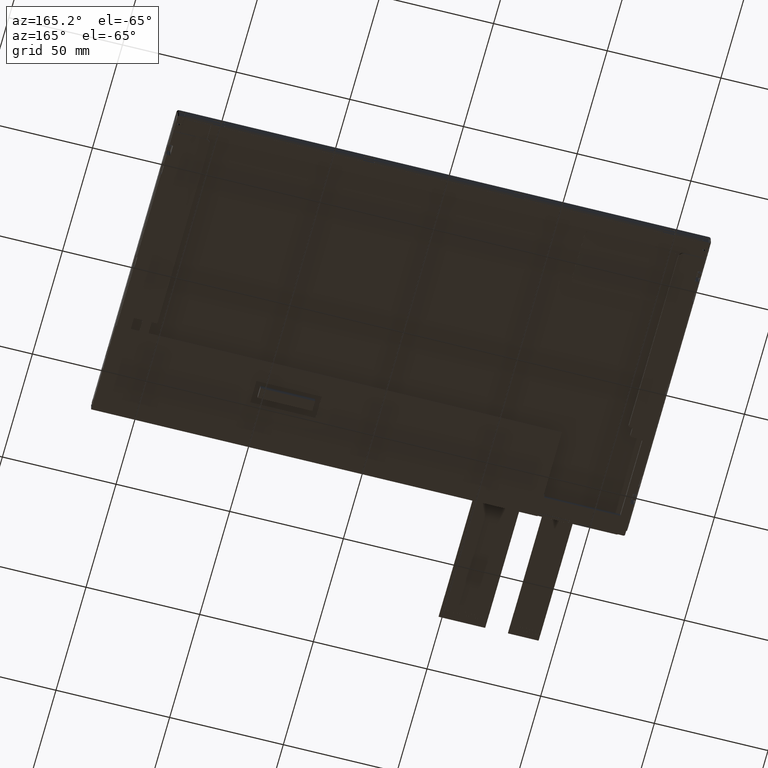
[diagram: clean part render]
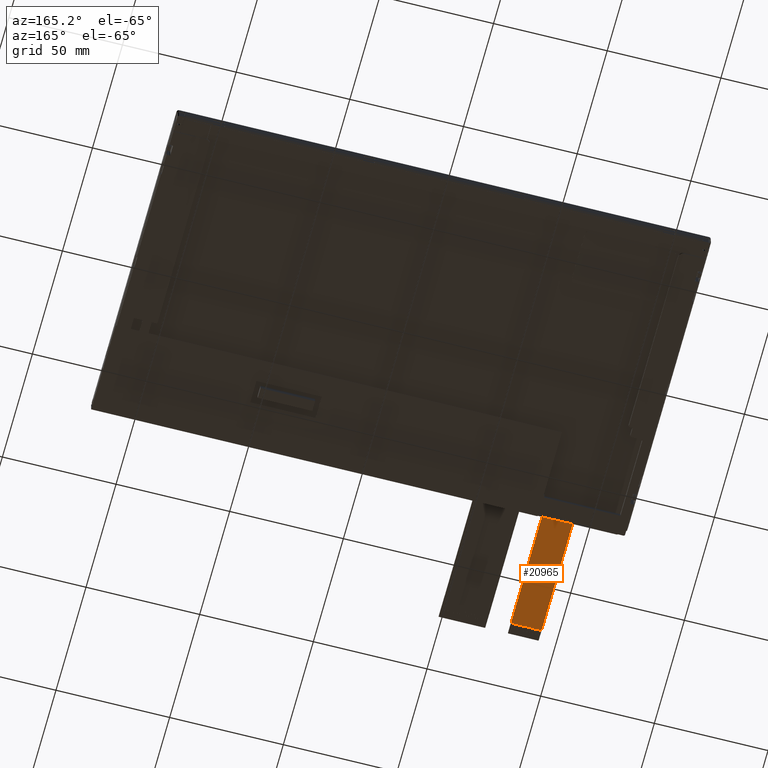
[diagram: same view with one face highlighted and labeled with its STEP entity id]
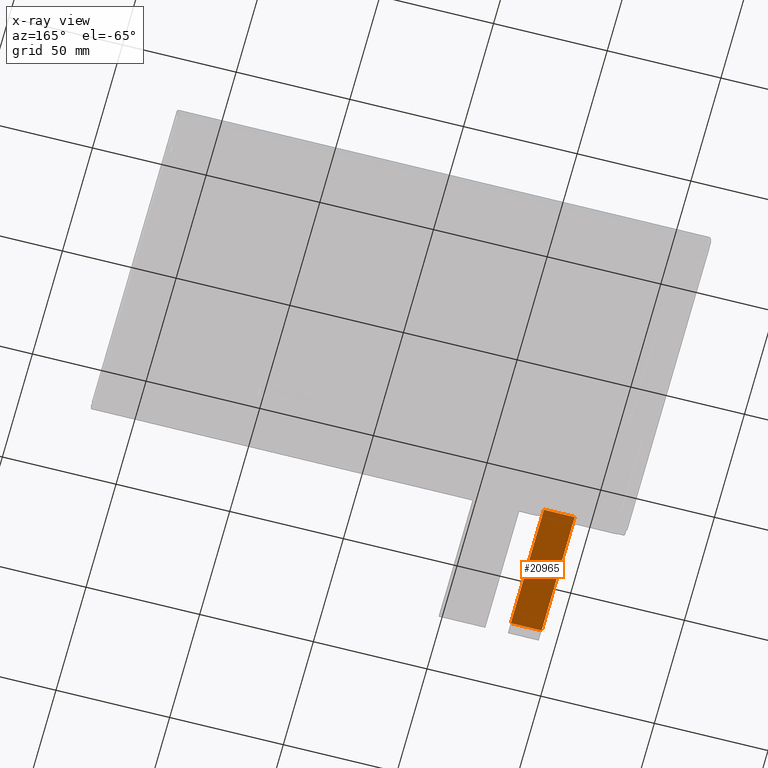
[diagram: x-ray of the same camera — body ghosted, the highlighted face saturated]
A machine part, auxiliary view. The second image highlights one B-rep face of the part: STEP entity #20965.
The next image is the same camera in x-ray: the body ghosted, the highlighted face saturated — about 0% of this face is hidden behind the body in this view.
In plain terms, the highlighted planar face has unit normal (0, 0, -1).
Its self-contained STEP definition (entity closure, byte-faithful):
#804=FACE_OUTER_BOUND('',#1896,.T.);
#1896=EDGE_LOOP('',(#15424,#15425,#15426,#15427));
#3334=LINE('',#29807,#6168);
#3671=LINE('',#30480,#6505);
#3690=LINE('',#30519,#6524);
#3694=LINE('',#30526,#6528);
#6168=VECTOR('',#24002,10.);
#6505=VECTOR('',#24671,10.);
#6524=VECTOR('',#24708,10.);
#6528=VECTOR('',#24716,10.);
#8878=VERTEX_POINT('',#29804);
#8879=VERTEX_POINT('',#29806);
#9049=VERTEX_POINT('',#30478);
#9060=VERTEX_POINT('',#30518);
#11054=EDGE_CURVE('',#8879,#8878,#3334,.T.);
#11391=EDGE_CURVE('',#8878,#9049,#3671,.T.);
#11410=EDGE_CURVE('',#9060,#8879,#3690,.T.);
#11414=EDGE_CURVE('',#9060,#9049,#3694,.T.);
#15424=ORIENTED_EDGE('',*,*,#11054,.T.);
#15425=ORIENTED_EDGE('',*,*,#11391,.T.);
#15426=ORIENTED_EDGE('',*,*,#11414,.F.);
#15427=ORIENTED_EDGE('',*,*,#11410,.T.);
#19994=PLANE('',#22093);
#20965=ADVANCED_FACE('',(#804),#19994,.T.);
#22093=AXIS2_PLACEMENT_3D('',#30525,#24714,#24715);
#24002=DIRECTION('',(-1.,4.984837574646E-16,-3.46255966250344E-66));
#24671=DIRECTION('',(4.984837574646E-16,1.,1.72602975101007E-81));
#24708=DIRECTION('',(-2.02424284231225E-16,-1.,-7.00906161290169E-82));
#24714=DIRECTION('center_axis',(3.46255966250344E-66,0.,-1.));
#24715=DIRECTION('ref_axis',(-1.,4.984837574646E-16,-3.46255966250344E-66));
#24716=DIRECTION('',(-1.,3.4717567915112E-16,-3.46255966250344E-66));
#29804=CARTESIAN_POINT('',(-94.1100000000001,-126.18,-1.2));
#29806=CARTESIAN_POINT('',(-80.6100000000001,-126.18,-1.2));
#29807=CARTESIAN_POINT('',(-83.9850000000001,-126.18,-1.2));
#30478=CARTESIAN_POINT('',(-94.11,-71.18,-1.2));
#30480=CARTESIAN_POINT('',(-94.11,-71.18,-1.2));
#30518=CARTESIAN_POINT('',(-80.61,-71.18,-1.2));
#30519=CARTESIAN_POINT('',(-80.6100000000001,-131.18,-1.2));
#30525=CARTESIAN_POINT('Origin',(-87.3600000000001,-101.18,-1.2));
#30526=CARTESIAN_POINT('',(15.155,-71.18,-1.2));